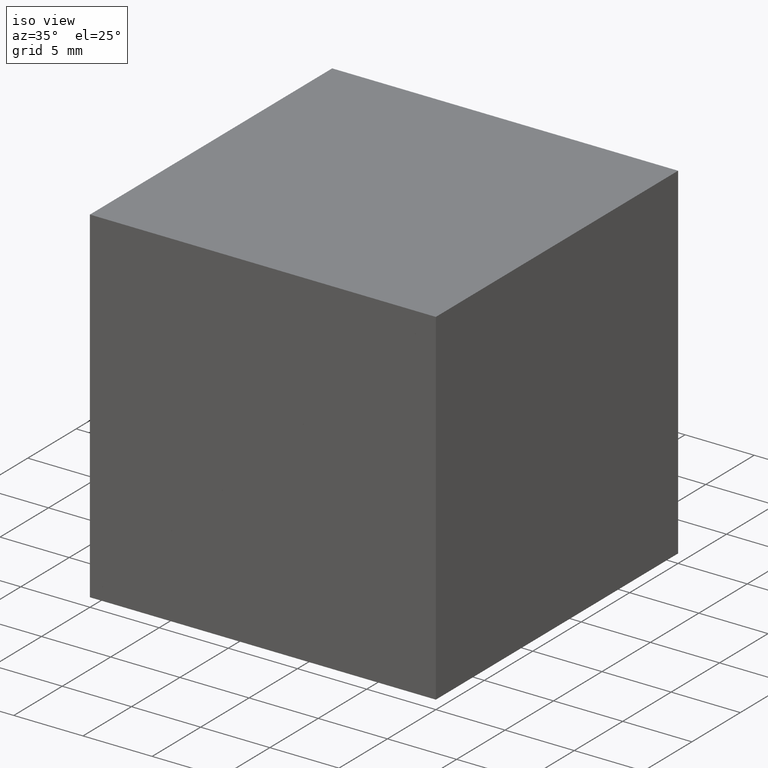
[diagram: clean part render]
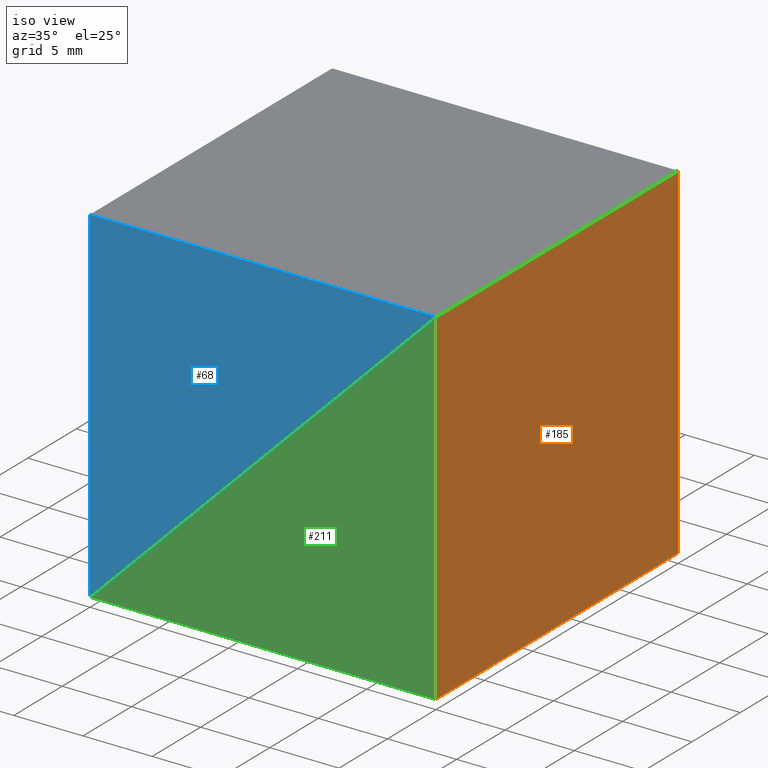
[diagram: same view with three faces highlighted in distinct colors, each labeled with its STEP entity id]
A machine part, iso view with three faces highlighted in distinct colors.
Their STEP definitions:

[orange] entity #185 — the highlighted planar face has unit normal (-1, 0, 0).
#1 = ORIENTED_EDGE ( 'NONE', *, *, #254, .T. ) ;
#20 = CARTESIAN_POINT ( 'NONE',  ( 0.0000000000000000000, 0.0000000000000000000, 0.0000000000000000000 ) ) ;
#25 = LINE ( 'NONE', #137, #257 ) ;
#32 = VERTEX_POINT ( 'NONE', #249 ) ;
#45 = DIRECTION ( 'NONE',  ( 0.0000000000000000000, 0.0000000000000000000, -1.000000000000000000 ) ) ;
#59 = EDGE_LOOP ( 'NONE', ( #1, #141, #210, #203 ) ) ;
#61 = EDGE_CURVE ( 'NONE', #99, #188, #25, .T. ) ;
#63 = LINE ( 'NONE', #20, #261 ) ;
#83 = VERTEX_POINT ( 'NONE', #260 ) ;
#93 = CARTESIAN_POINT ( 'NONE',  ( 0.0000000000000000000, 25.00000000000000000, 0.0000000000000000000 ) ) ;
#94 = DIRECTION ( 'NONE',  ( 0.0000000000000000000, 0.0000000000000000000, -1.000000000000000000 ) ) ;
#99 = VERTEX_POINT ( 'NONE', #277 ) ;
#101 = AXIS2_PLACEMENT_3D ( 'NONE', #93, #165, #118 ) ;
#118 = DIRECTION ( 'NONE',  ( 0.0000000000000000000, 0.0000000000000000000, 1.000000000000000000 ) ) ;
#126 = CARTESIAN_POINT ( 'NONE',  ( 0.0000000000000000000, 0.0000000000000000000, 0.0000000000000000000 ) ) ;
#137 = CARTESIAN_POINT ( 'NONE',  ( 0.0000000000000000000, 25.00000000000000000, 0.0000000000000000000 ) ) ;
#140 = EDGE_CURVE ( 'NONE', #99, #83, #293, .T. ) ;
#141 = ORIENTED_EDGE ( 'NONE', *, *, #159, .F. ) ;
#159 = EDGE_CURVE ( 'NONE', #83, #32, #204, .T. ) ;
#164 = VECTOR ( 'NONE', #94, 1000.000000000000000 ) ;
#165 = DIRECTION ( 'NONE',  ( -1.000000000000000000, 0.0000000000000000000, 0.0000000000000000000 ) ) ;
#175 = CARTESIAN_POINT ( 'NONE',  ( 0.0000000000000000000, 25.00000000000000000, -25.00000000000000000 ) ) ;
#185 = ADVANCED_FACE ( 'NONE', ( #192 ), #251, .F. ) ;
#188 = VERTEX_POINT ( 'NONE', #126 ) ;
#189 = CARTESIAN_POINT ( 'NONE',  ( 0.0000000000000000000, 25.00000000000000000, 0.0000000000000000000 ) ) ;
#192 = FACE_OUTER_BOUND ( 'NONE', #59, .T. ) ;
#195 = VECTOR ( 'NONE', #273, 1000.000000000000000 ) ;
#203 = ORIENTED_EDGE ( 'NONE', *, *, #61, .T. ) ;
#204 = LINE ( 'NONE', #175, #195 ) ;
#210 = ORIENTED_EDGE ( 'NONE', *, *, #140, .F. ) ;
#249 = CARTESIAN_POINT ( 'NONE',  ( 0.0000000000000000000, 0.0000000000000000000, -25.00000000000000000 ) ) ;
#251 = PLANE ( 'NONE',  #101 ) ;
#254 = EDGE_CURVE ( 'NONE', #188, #32, #63, .T. ) ;
#257 = VECTOR ( 'NONE', #259, 1000.000000000000000 ) ;
#259 = DIRECTION ( 'NONE',  ( -0.0000000000000000000, -1.000000000000000000, -0.0000000000000000000 ) ) ;
#260 = CARTESIAN_POINT ( 'NONE',  ( 0.0000000000000000000, 25.00000000000000000, -25.00000000000000000 ) ) ;
#261 = VECTOR ( 'NONE', #45, 1000.000000000000000 ) ;
#273 = DIRECTION ( 'NONE',  ( -0.0000000000000000000, -1.000000000000000000, -0.0000000000000000000 ) ) ;
#277 = CARTESIAN_POINT ( 'NONE',  ( 0.0000000000000000000, 25.00000000000000000, 0.0000000000000000000 ) ) ;
#293 = LINE ( 'NONE', #189, #164 ) ;

[blue] entity #68 — the highlighted planar face has unit normal (0, 1, 0).
#15 = DIRECTION ( 'NONE',  ( -1.000000000000000000, -0.0000000000000000000, -0.0000000000000000000 ) ) ;
#17 = EDGE_CURVE ( 'NONE', #267, #90, #138, .T. ) ;
#27 = CARTESIAN_POINT ( 'NONE',  ( -25.00000000000000000, -0.0000000000000000000, -25.00000000000000000 ) ) ;
#34 = EDGE_CURVE ( 'NONE', #90, #44, #237, .T. ) ;
#41 = EDGE_LOOP ( 'NONE', ( #282, #272, #177 ) ) ;
#44 = VERTEX_POINT ( 'NONE', #256 ) ;
#68 = ADVANCED_FACE ( 'NONE', ( #69 ), #214, .F. ) ;
#69 = FACE_OUTER_BOUND ( 'NONE', #41, .T. ) ;
#90 = VERTEX_POINT ( 'NONE', #148 ) ;
#92 = EDGE_CURVE ( 'NONE', #44, #267, #265, .T. ) ;
#97 = DIRECTION ( 'NONE',  ( -0.0000000000000000000, -0.0000000000000000000, -1.000000000000000000 ) ) ;
#111 = VECTOR ( 'NONE', #97, 1000.000000000000000 ) ;
#115 = CARTESIAN_POINT ( 'NONE',  ( -25.00000000000000000, -0.0000000000000000000, -25.00000000000000000 ) ) ;
#117 = VECTOR ( 'NONE', #288, 1000.000000000000100 ) ;
#138 = LINE ( 'NONE', #169, #117 ) ;
#148 = CARTESIAN_POINT ( 'NONE',  ( 0.0000000000000000000, 0.0000000000000000000, 0.0000000000000000000 ) ) ;
#169 = CARTESIAN_POINT ( 'NONE',  ( 0.0000000000000000000, 0.0000000000000000000, 0.0000000000000000000 ) ) ;
#173 = AXIS2_PLACEMENT_3D ( 'NONE', #253, #241, #190 ) ;
#177 = ORIENTED_EDGE ( 'NONE', *, *, #92, .T. ) ;
#179 = CARTESIAN_POINT ( 'NONE',  ( -25.00000000000000000, 0.0000000000000000000, 0.0000000000000000000 ) ) ;
#190 = DIRECTION ( 'NONE',  ( 0.0000000000000000000, -0.0000000000000000000, 1.000000000000000000 ) ) ;
#196 = VECTOR ( 'NONE', #15, 1000.000000000000000 ) ;
#214 = PLANE ( 'NONE',  #173 ) ;
#237 = LINE ( 'NONE', #179, #196 ) ;
#241 = DIRECTION ( 'NONE',  ( 0.0000000000000000000, 1.000000000000000000, 0.0000000000000000000 ) ) ;
#253 = CARTESIAN_POINT ( 'NONE',  ( 0.0000000000000000000, 0.0000000000000000000, 0.0000000000000000000 ) ) ;
#256 = CARTESIAN_POINT ( 'NONE',  ( -25.00000000000000000, 0.0000000000000000000, 0.0000000000000000000 ) ) ;
#265 = LINE ( 'NONE', #115, #111 ) ;
#267 = VERTEX_POINT ( 'NONE', #27 ) ;
#272 = ORIENTED_EDGE ( 'NONE', *, *, #34, .T. ) ;
#282 = ORIENTED_EDGE ( 'NONE', *, *, #17, .T. ) ;
#288 = DIRECTION ( 'NONE',  ( 0.7071067811865474600, 0.0000000000000000000, 0.7071067811865474600 ) ) ;

[green] entity #211 — the highlighted planar face has unit normal (-0, 1, 0).
#20 = CARTESIAN_POINT ( 'NONE',  ( 0.0000000000000000000, 0.0000000000000000000, 0.0000000000000000000 ) ) ;
#31 = DIRECTION ( 'NONE',  ( -1.000000000000000000, 0.0000000000000000000, 0.0000000000000000000 ) ) ;
#32 = VERTEX_POINT ( 'NONE', #249 ) ;
#35 = ORIENTED_EDGE ( 'NONE', *, *, #264, .F. ) ;
#38 = CARTESIAN_POINT ( 'NONE',  ( -25.00000000000000000, 0.0000000000000000000, -25.00000000000000000 ) ) ;
#45 = DIRECTION ( 'NONE',  ( 0.0000000000000000000, 0.0000000000000000000, -1.000000000000000000 ) ) ;
#56 = VERTEX_POINT ( 'NONE', #243 ) ;
#63 = LINE ( 'NONE', #20, #261 ) ;
#74 = VECTOR ( 'NONE', #209, 1000.000000000000100 ) ;
#84 = AXIS2_PLACEMENT_3D ( 'NONE', #221, #252, #187 ) ;
#104 = LINE ( 'NONE', #38, #74 ) ;
#126 = CARTESIAN_POINT ( 'NONE',  ( 0.0000000000000000000, 0.0000000000000000000, 0.0000000000000000000 ) ) ;
#180 = ORIENTED_EDGE ( 'NONE', *, *, #225, .F. ) ;
#187 = DIRECTION ( 'NONE',  ( 0.0000000000000000000, -0.0000000000000000000, 1.000000000000000000 ) ) ;
#188 = VERTEX_POINT ( 'NONE', #126 ) ;
#209 = DIRECTION ( 'NONE',  ( 0.7071067811865474600, 0.0000000000000000000, 0.7071067811865474600 ) ) ;
#211 = ADVANCED_FACE ( 'NONE', ( #278 ), #235, .F. ) ;
#215 = ORIENTED_EDGE ( 'NONE', *, *, #254, .F. ) ;
#221 = CARTESIAN_POINT ( 'NONE',  ( 0.0000000000000000000, 0.0000000000000000000, 0.0000000000000000000 ) ) ;
#225 = EDGE_CURVE ( 'NONE', #56, #188, #104, .T. ) ;
#235 = PLANE ( 'NONE',  #84 ) ;
#236 = VECTOR ( 'NONE', #31, 1000.000000000000000 ) ;
#243 = CARTESIAN_POINT ( 'NONE',  ( -25.00000000000000000, 0.0000000000000000000, -25.00000000000000000 ) ) ;
#249 = CARTESIAN_POINT ( 'NONE',  ( 0.0000000000000000000, 0.0000000000000000000, -25.00000000000000000 ) ) ;
#252 = DIRECTION ( 'NONE',  ( -0.0000000000000000000, 1.000000000000000000, 0.0000000000000000000 ) ) ;
#254 = EDGE_CURVE ( 'NONE', #188, #32, #63, .T. ) ;
#261 = VECTOR ( 'NONE', #45, 1000.000000000000000 ) ;
#264 = EDGE_CURVE ( 'NONE', #32, #56, #274, .T. ) ;
#274 = LINE ( 'NONE', #290, #236 ) ;
#275 = EDGE_LOOP ( 'NONE', ( #180, #35, #215 ) ) ;
#278 = FACE_OUTER_BOUND ( 'NONE', #275, .T. ) ;
#290 = CARTESIAN_POINT ( 'NONE',  ( 0.0000000000000000000, 0.0000000000000000000, -25.00000000000000000 ) ) ;